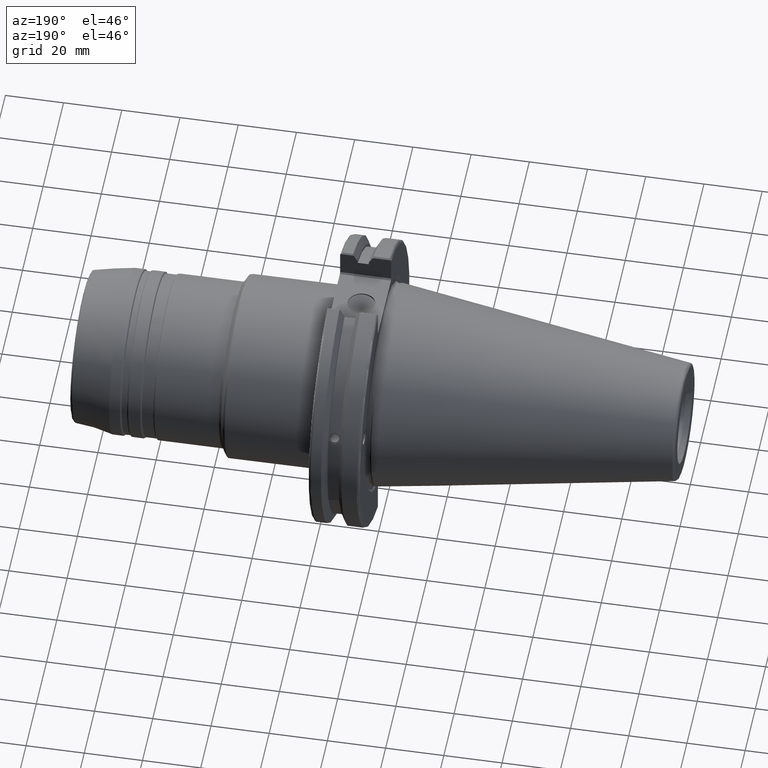
[diagram: clean part render]
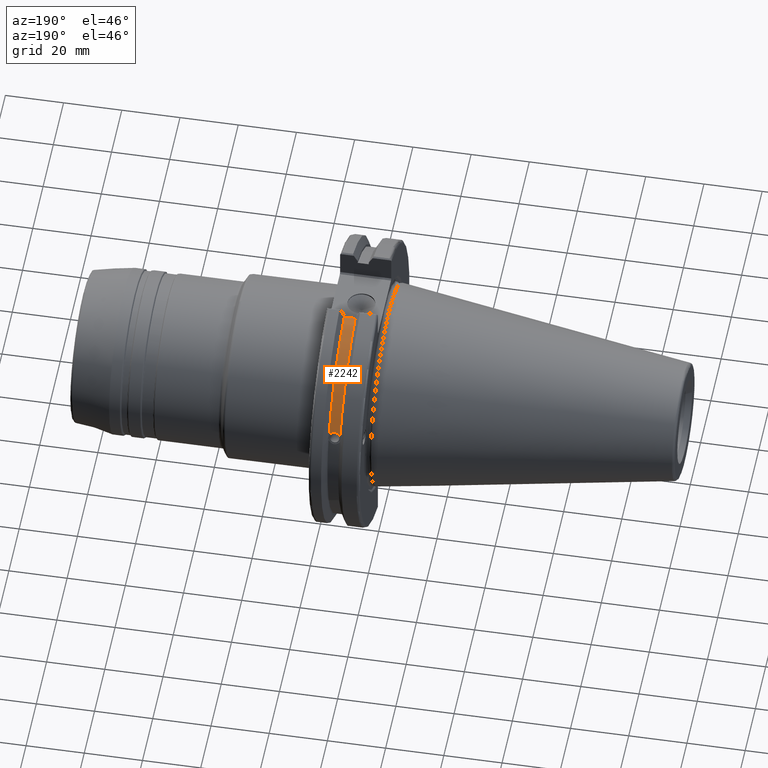
[diagram: same view with one face highlighted and labeled with its STEP entity id]
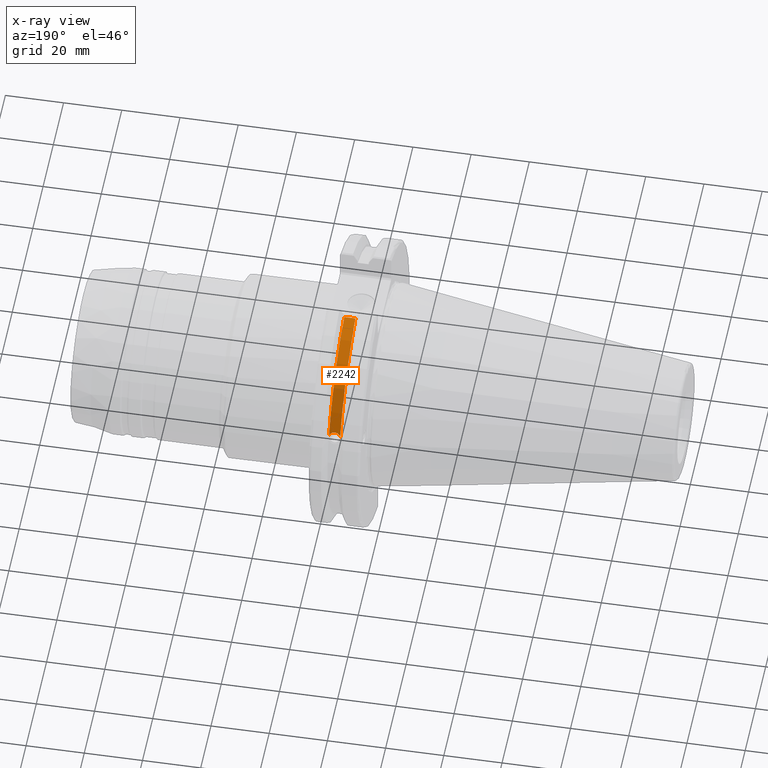
[diagram: x-ray of the same camera — body ghosted, the highlighted face saturated]
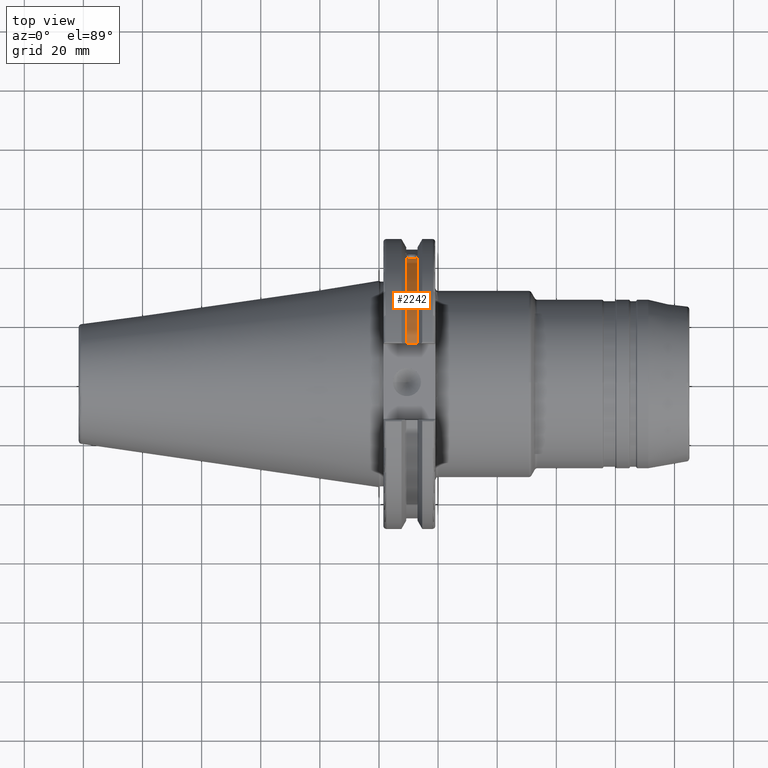
[diagram: same view with one face highlighted and labeled with its STEP entity id]
A machine part, auxiliary view. The second image highlights one B-rep face of the part: STEP entity #2242.
The next image is the same camera in x-ray: the body ghosted, the highlighted face saturated — about 0% of this face is hidden behind the body in this view.
A second angle (top view) of the same face is appended — the face is thin or edge-on in the first view.
In plain terms, the highlighted cylindrical surface (partial cylindrical patch) has radius 45.6435 mm, axis along (1, 0, 0).
Its self-contained STEP definition (entity closure, byte-faithful):
#57=B_SPLINE_CURVE_WITH_KNOTS('',3,(#4031,#4032,#4033,#4034,#4035,#4036,
#4037,#4038,#4039,#4040,#4041,#4042,#4043,#4044,#4045),.UNSPECIFIED.,.F.,
 .F.,(4,2,2,3,2,2,4),(-0.231381164054413,-0.158232381135623,-0.0791161905678117,
0.,0.0791161905678115,0.158232381135623,0.231381164054562),
 .UNSPECIFIED.);
#244=LINE('',#4391,#350);
#350=VECTOR('',#3166,10.);
#392=CYLINDRICAL_SURFACE('',#2543,45.6435);
#491=FACE_OUTER_BOUND('',#616,.T.);
#616=EDGE_LOOP('',(#2051,#2052,#2053,#2054));
#802=CIRCLE('',#2542,45.6435);
#803=CIRCLE('',#2544,45.6435);
#979=VERTEX_POINT('',#4028);
#980=VERTEX_POINT('',#4030);
#1053=VERTEX_POINT('',#4388);
#1054=VERTEX_POINT('',#4390);
#1276=EDGE_CURVE('',#980,#979,#57,.T.);
#1386=EDGE_CURVE('',#1054,#1053,#244,.T.);
#1402=EDGE_CURVE('',#980,#1053,#802,.T.);
#1403=EDGE_CURVE('',#979,#1054,#803,.T.);
#2051=ORIENTED_EDGE('',*,*,#1276,.T.);
#2052=ORIENTED_EDGE('',*,*,#1403,.T.);
#2053=ORIENTED_EDGE('',*,*,#1386,.T.);
#2054=ORIENTED_EDGE('',*,*,#1402,.F.);
#2242=ADVANCED_FACE('',(#491),#392,.T.);
#2542=AXIS2_PLACEMENT_3D('',#4426,#3209,#3210);
#2543=AXIS2_PLACEMENT_3D('',#4427,#3211,#3212);
#2544=AXIS2_PLACEMENT_3D('',#4428,#3213,#3214);
#3166=DIRECTION('',(1.,0.,0.));
#3209=DIRECTION('center_axis',(1.,0.,0.));
#3210=DIRECTION('ref_axis',(0.,0.,-1.));
#3211=DIRECTION('center_axis',(1.,0.,0.));
#3212=DIRECTION('ref_axis',(0.,1.,0.));
#3213=DIRECTION('center_axis',(1.,0.,0.));
#3214=DIRECTION('ref_axis',(0.,0.,-1.));
#4028=CARTESIAN_POINT('',(9.2191,42.5884454651059,16.4180816515115));
#4030=CARTESIAN_POINT('',(13.0491,42.5884454651059,16.4180816515116));
#4031=CARTESIAN_POINT('Ctrl Pts',(13.0491,42.5884454651059,16.4180816515116));
#4032=CARTESIAN_POINT('Ctrl Pts',(12.9428782240206,42.503532383264,16.6383458840849));
#4033=CARTESIAN_POINT('Ctrl Pts',(12.791391924423,42.4245077186417,16.8380515255915));
#4034=CARTESIAN_POINT('Ctrl Pts',(12.4325949659982,42.2908173017388,17.1712159412199));
#4035=CARTESIAN_POINT('Ctrl Pts',(12.1964796719457,42.2294695309474,17.3208689126276));
#4036=CARTESIAN_POINT('Ctrl Pts',(11.6790940832128,42.1475978938586,17.5191491957165));
#4037=CARTESIAN_POINT('Ctrl Pts',(11.397820635226,42.1271980081205,17.5678194501937));
#4038=CARTESIAN_POINT('Ctrl Pts',(11.1341,42.1271980081205,17.5678194501937));
#4039=CARTESIAN_POINT('Ctrl Pts',(10.870379364774,42.1271980081205,17.5678194501937));
#4040=CARTESIAN_POINT('Ctrl Pts',(10.5891059167872,42.1475978938586,17.5191491957165));
#4041=CARTESIAN_POINT('Ctrl Pts',(10.0717203280543,42.2294695309474,17.3208689126276));
#4042=CARTESIAN_POINT('Ctrl Pts',(9.83560503400179,42.2908173017388,17.1712159412199));
#4043=CARTESIAN_POINT('Ctrl Pts',(9.47680807557666,42.4245077186418,16.8380515255912));
#4044=CARTESIAN_POINT('Ctrl Pts',(9.32532177598177,42.5035323832622,16.6383458840897));
#4045=CARTESIAN_POINT('Ctrl Pts',(9.2191,42.5884454651059,16.4180816515115));
#4388=CARTESIAN_POINT('',(13.0491,12.95,43.7678716897452));
#4390=CARTESIAN_POINT('',(9.2191,12.95,43.7678716897452));
#4391=CARTESIAN_POINT('',(11.1341,12.95,43.7678716897452));
#4426=CARTESIAN_POINT('Origin',(13.0491,0.,0.));
#4427=CARTESIAN_POINT('Origin',(11.1341,0.,0.));
#4428=CARTESIAN_POINT('Origin',(9.2191,0.,0.));